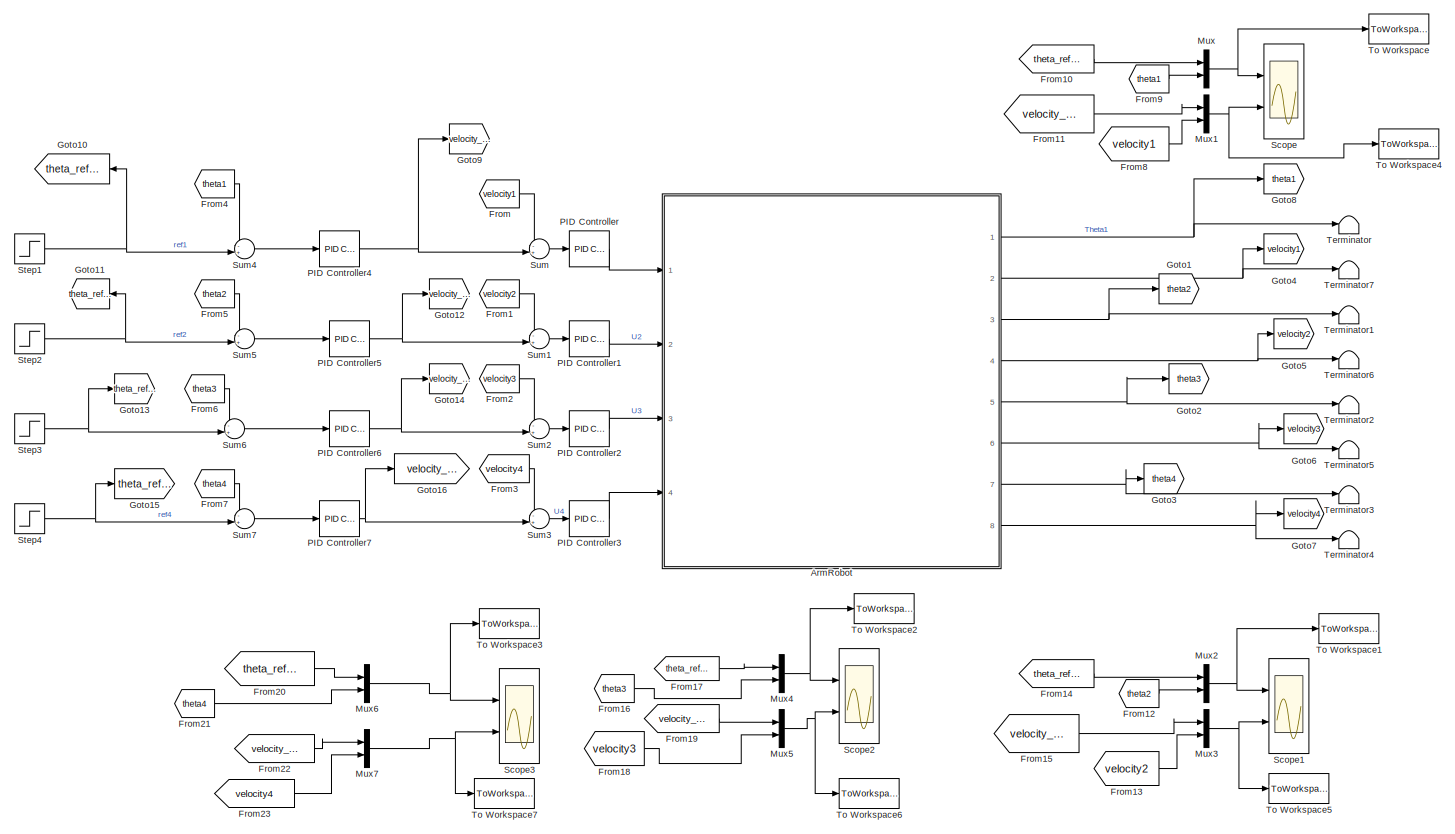
[diagram: root canvas - part 1/1, most of the canvas]
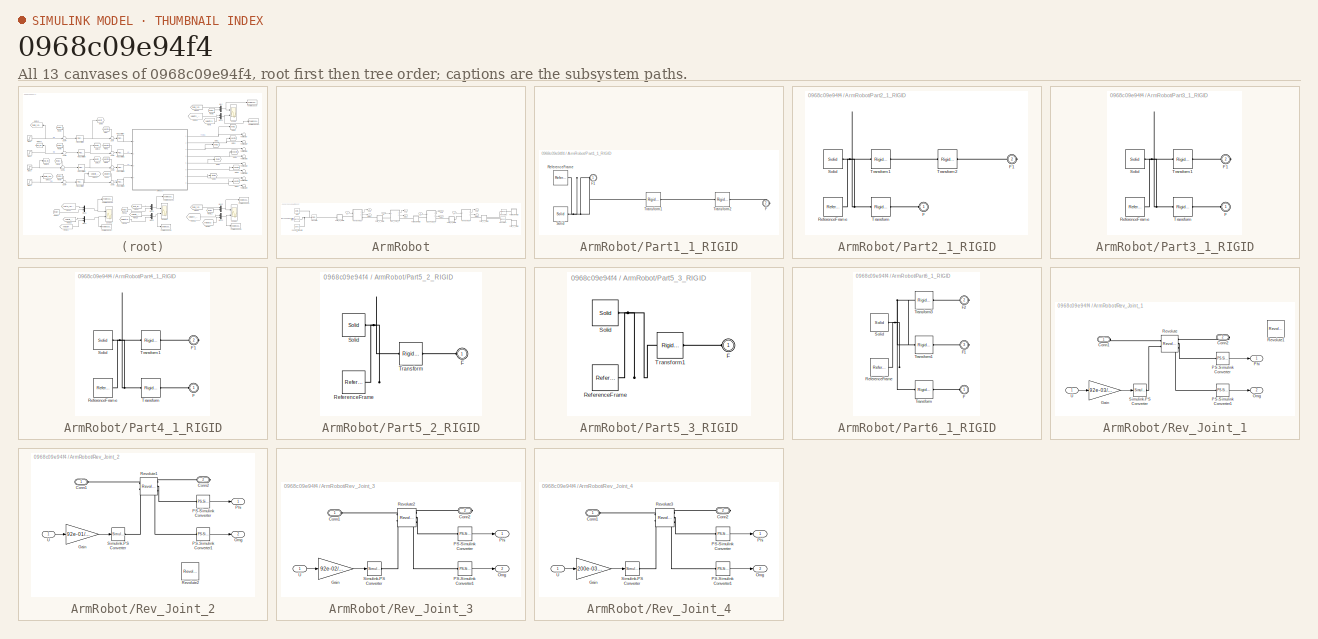
[diagram: thumbnail index - all 13 canvases of the model, root first then tree order]
MODEL slx_0968c09e94f4
KIND model
CONFIG AbsTol = auto
CONFIG FixedStep = 0.001
CONFIG MaxStep = auto
CONFIG MinStep = auto
CONFIG RelTol = 1e-3
CONFIG SampleTimeConstraint = Unconstrained
CONFIG Solver = ode5
CONFIG SolverMode = Auto
CONFIG SolverName = ode5
CONFIG StartTime = 0.0
CONFIG StopTime = 15
WORKSPACE source: external: MATLAB File  (data not in archive)
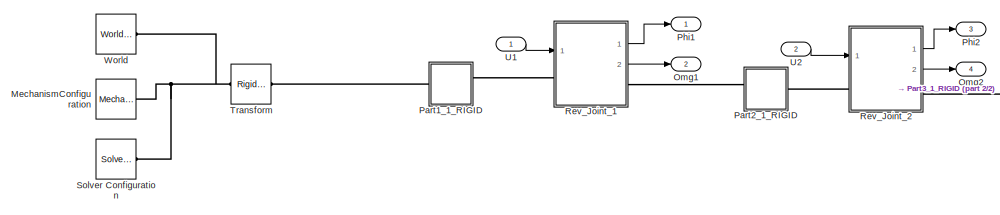
[diagram: ArmRobot - part 1/2, left side, full height]
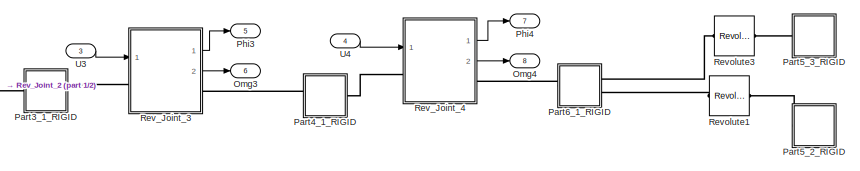
[diagram: ArmRobot - part 2/2, middle right region]
BLOCK [SubSystem] ArmRobot
  Ports = [4, 8]
  RequestExecContextInheritance = off
  Variant = off
BLOCK [Reference] ArmRobot/MechanismConfiguration  REF=sm_lib/Utilities/Mechanism
Configuration
  Ports = [0, 0, 0, 0, 0, 0, 1]
  SourceBlock = sm_lib/Utilities/Mechanism\nConfiguration
  SourceType = Mechanism\nConfiguration
BLOCK [Outport] ArmRobot/Omg1
  IconDisplay = Port number
  Port = 2
BLOCK [Outport] ArmRobot/Omg2
  IconDisplay = Port number
  Port = 4
BLOCK [Outport] ArmRobot/Omg3
  IconDisplay = Port number
  Port = 6
BLOCK [Outport] ArmRobot/Omg4
  IconDisplay = Port number
  Port = 8
BLOCK [SubSystem] ArmRobot/Part1_1_RIGID
  Ports = [0, 0, 0, 0, 0, 1, 1]
  RequestExecContextInheritance = off
  Variant = off
BLOCK [PMIOPort] ArmRobot/Part1_1_RIGID/F
  Port = 2
  Side = Right
BLOCK [PMIOPort] ArmRobot/Part1_1_RIGID/F1
  Port = 1
  Side = Left
BLOCK [Reference] ArmRobot/Part1_1_RIGID/ReferenceFrame  REF=sm_lib/Frames and
Transforms/Reference
Frame
  Ports = [0, 0, 0, 0, 0, 0, 1]
  SourceBlock = sm_lib/Frames and\nTransforms/Reference\nFrame
  SourceType = Reference\nFrame
BLOCK [Reference] ArmRobot/Part1_1_RIGID/Solid  REF=sm_lib/Body Elements/Solid
  Ports = [0, 0, 0, 0, 0, 0, 1]
  SourceBlock = sm_lib/Body Elements/Solid
  SourceType = Solid
BLOCK [Reference] ArmRobot/Part1_1_RIGID/Transform1  REF=sm_lib/Frames and
Transforms/Rigid
Transform
  Ports = [0, 0, 0, 0, 0, 1, 1]
  SourceBlock = sm_lib/Frames and\nTransforms/Rigid\nTransform
  SourceType = Rigid\nTransform
BLOCK [Reference] ArmRobot/Part1_1_RIGID/Transform2  REF=sm_lib/Frames and
Transforms/Rigid
Transform
  Ports = [0, 0, 0, 0, 0, 1, 1]
  SourceBlock = sm_lib/Frames and\nTransforms/Rigid\nTransform
  SourceType = Rigid\nTransform
BLOCK [SubSystem] ArmRobot/Part2_1_RIGID
  Ports = [0, 0, 0, 0, 0, 1, 1]
  RequestExecContextInheritance = off
  Variant = off
BLOCK [PMIOPort] ArmRobot/Part2_1_RIGID/F
  Port = 1
  Side = Left
BLOCK [PMIOPort] ArmRobot/Part2_1_RIGID/F1
  Port = 2
  Side = Right
BLOCK [Reference] ArmRobot/Part2_1_RIGID/ReferenceFrame  REF=sm_lib/Frames and
Transforms/Reference
Frame
  Ports = [0, 0, 0, 0, 0, 0, 1]
  SourceBlock = sm_lib/Frames and\nTransforms/Reference\nFrame
  SourceType = Reference\nFrame
BLOCK [Reference] ArmRobot/Part2_1_RIGID/Solid  REF=sm_lib/Body Elements/Solid
  Ports = [0, 0, 0, 0, 0, 0, 1]
  SourceBlock = sm_lib/Body Elements/Solid
  SourceType = Solid
BLOCK [Reference] ArmRobot/Part2_1_RIGID/Transform  REF=sm_lib/Frames and
Transforms/Rigid
Transform
  Ports = [0, 0, 0, 0, 0, 1, 1]
  SourceBlock = sm_lib/Frames and\nTransforms/Rigid\nTransform
  SourceType = Rigid\nTransform
BLOCK [Reference] ArmRobot/Part2_1_RIGID/Transform1  REF=sm_lib/Frames and
Transforms/Rigid
Transform
  Ports = [0, 0, 0, 0, 0, 1, 1]
  SourceBlock = sm_lib/Frames and\nTransforms/Rigid\nTransform
  SourceType = Rigid\nTransform
BLOCK [Reference] ArmRobot/Part2_1_RIGID/Transform2  REF=sm_lib/Frames and
Transforms/Rigid
Transform
  Ports = [0, 0, 0, 0, 0, 1, 1]
  SourceBlock = sm_lib/Frames and\nTransforms/Rigid\nTransform
  SourceType = Rigid\nTransform
BLOCK [SubSystem] ArmRobot/Part3_1_RIGID
  Ports = [0, 0, 0, 0, 0, 1, 1]
  RequestExecContextInheritance = off
  Variant = off
BLOCK [PMIOPort] ArmRobot/Part3_1_RIGID/F
  Port = 1
  Side = Left
BLOCK [PMIOPort] ArmRobot/Part3_1_RIGID/F1
  Port = 2
  Side = Right
BLOCK [Reference] ArmRobot/Part3_1_RIGID/ReferenceFrame  REF=sm_lib/Frames and
Transforms/Reference
Frame
  Ports = [0, 0, 0, 0, 0, 0, 1]
  SourceBlock = sm_lib/Frames and\nTransforms/Reference\nFrame
  SourceType = Reference\nFrame
BLOCK [Reference] ArmRobot/Part3_1_RIGID/Solid  REF=sm_lib/Body Elements/Solid
  Ports = [0, 0, 0, 0, 0, 0, 1]
  SourceBlock = sm_lib/Body Elements/Solid
  SourceType = Solid
BLOCK [Reference] ArmRobot/Part3_1_RIGID/Transform  REF=sm_lib/Frames and
Transforms/Rigid
Transform
  Ports = [0, 0, 0, 0, 0, 1, 1]
  SourceBlock = sm_lib/Frames and\nTransforms/Rigid\nTransform
  SourceType = Rigid\nTransform
BLOCK [Reference] ArmRobot/Part3_1_RIGID/Transform1  REF=sm_lib/Frames and
Transforms/Rigid
Transform
  Ports = [0, 0, 0, 0, 0, 1, 1]
  SourceBlock = sm_lib/Frames and\nTransforms/Rigid\nTransform
  SourceType = Rigid\nTransform
BLOCK [SubSystem] ArmRobot/Part4_1_RIGID
  Ports = [0, 0, 0, 0, 0, 1, 1]
  RequestExecContextInheritance = off
  Variant = off
BLOCK [PMIOPort] ArmRobot/Part4_1_RIGID/F
  Port = 1
  Side = Left
BLOCK [PMIOPort] ArmRobot/Part4_1_RIGID/F1
  Port = 2
  Side = Right
BLOCK [Reference] ArmRobot/Part4_1_RIGID/ReferenceFrame  REF=sm_lib/Frames and
Transforms/Reference
Frame
  Ports = [0, 0, 0, 0, 0, 0, 1]
  SourceBlock = sm_lib/Frames and\nTransforms/Reference\nFrame
  SourceType = Reference\nFrame
BLOCK [Reference] ArmRobot/Part4_1_RIGID/Solid  REF=sm_lib/Body Elements/Solid
  Ports = [0, 0, 0, 0, 0, 0, 1]
  SourceBlock = sm_lib/Body Elements/Solid
  SourceType = Solid
BLOCK [Reference] ArmRobot/Part4_1_RIGID/Transform  REF=sm_lib/Frames and
Transforms/Rigid
Transform
  Ports = [0, 0, 0, 0, 0, 1, 1]
  SourceBlock = sm_lib/Frames and\nTransforms/Rigid\nTransform
  SourceType = Rigid\nTransform
BLOCK [Reference] ArmRobot/Part4_1_RIGID/Transform1  REF=sm_lib/Frames and
Transforms/Rigid
Transform
  Ports = [0, 0, 0, 0, 0, 1, 1]
  SourceBlock = sm_lib/Frames and\nTransforms/Rigid\nTransform
  SourceType = Rigid\nTransform
BLOCK [SubSystem] ArmRobot/Part5_2_RIGID
  Ports = [0, 0, 0, 0, 0, 1]
  RequestExecContextInheritance = off
  Variant = off
BLOCK [PMIOPort] ArmRobot/Part5_2_RIGID/F
  Port = 1
  Side = Left
BLOCK [Reference] ArmRobot/Part5_2_RIGID/ReferenceFrame  REF=sm_lib/Frames and
Transforms/Reference
Frame
  Ports = [0, 0, 0, 0, 0, 0, 1]
  SourceBlock = sm_lib/Frames and\nTransforms/Reference\nFrame
  SourceType = Reference\nFrame
BLOCK [Reference] ArmRobot/Part5_2_RIGID/Solid  REF=sm_lib/Body Elements/Solid
  Ports = [0, 0, 0, 0, 0, 0, 1]
  SourceBlock = sm_lib/Body Elements/Solid
  SourceType = Solid
BLOCK [Reference] ArmRobot/Part5_2_RIGID/Transform  REF=sm_lib/Frames and
Transforms/Rigid
Transform
  Ports = [0, 0, 0, 0, 0, 1, 1]
  SourceBlock = sm_lib/Frames and\nTransforms/Rigid\nTransform
  SourceType = Rigid\nTransform
BLOCK [SubSystem] ArmRobot/Part5_3_RIGID
  Ports = [0, 0, 0, 0, 0, 1]
  RequestExecContextInheritance = off
  Variant = off
BLOCK [PMIOPort] ArmRobot/Part5_3_RIGID/F
  Port = 1
  Side = Left
BLOCK [Reference] ArmRobot/Part5_3_RIGID/ReferenceFrame  REF=sm_lib/Frames and
Transforms/Reference
Frame
  Ports = [0, 0, 0, 0, 0, 0, 1]
  SourceBlock = sm_lib/Frames and\nTransforms/Reference\nFrame
  SourceType = Reference\nFrame
BLOCK [Reference] ArmRobot/Part5_3_RIGID/Solid  REF=sm_lib/Body Elements/Solid
  Ports = [0, 0, 0, 0, 0, 0, 1]
  SourceBlock = sm_lib/Body Elements/Solid
  SourceType = Solid
BLOCK [Reference] ArmRobot/Part5_3_RIGID/Transform1  REF=sm_lib/Frames and
Transforms/Rigid
Transform
  Ports = [0, 0, 0, 0, 0, 1, 1]
  SourceBlock = sm_lib/Frames and\nTransforms/Rigid\nTransform
  SourceType = Rigid\nTransform
BLOCK [SubSystem] ArmRobot/Part6_1_RIGID
  Ports = [0, 0, 0, 0, 0, 1, 2]
  RequestExecContextInheritance = off
  Variant = off
BLOCK [PMIOPort] ArmRobot/Part6_1_RIGID/F
  Port = 1
  Side = Left
BLOCK [PMIOPort] ArmRobot/Part6_1_RIGID/F1
  Port = 3
  Side = Right
BLOCK [PMIOPort] ArmRobot/Part6_1_RIGID/F2
  Port = 2
  Side = Right
BLOCK [Reference] ArmRobot/Part6_1_RIGID/ReferenceFrame  REF=sm_lib/Frames and
Transforms/Reference
Frame
  Ports = [0, 0, 0, 0, 0, 0, 1]
  SourceBlock = sm_lib/Frames and\nTransforms/Reference\nFrame
  SourceType = Reference\nFrame
BLOCK [Reference] ArmRobot/Part6_1_RIGID/Solid  REF=sm_lib/Body Elements/Solid
  Ports = [0, 0, 0, 0, 0, 0, 1]
  SourceBlock = sm_lib/Body Elements/Solid
  SourceType = Solid
BLOCK [Reference] ArmRobot/Part6_1_RIGID/Transform  REF=sm_lib/Frames and
Transforms/Rigid
Transform
  Ports = [0, 0, 0, 0, 0, 1, 1]
  SourceBlock = sm_lib/Frames and\nTransforms/Rigid\nTransform
  SourceType = Rigid\nTransform
BLOCK [Reference] ArmRobot/Part6_1_RIGID/Transform1  REF=sm_lib/Frames and
Transforms/Rigid
Transform
  Ports = [0, 0, 0, 0, 0, 1, 1]
  SourceBlock = sm_lib/Frames and\nTransforms/Rigid\nTransform
  SourceType = Rigid\nTransform
BLOCK [Reference] ArmRobot/Part6_1_RIGID/Transform3  REF=sm_lib/Frames and
Transforms/Rigid
Transform
  Ports = [0, 0, 0, 0, 0, 1, 1]
  SourceBlock = sm_lib/Frames and\nTransforms/Rigid\nTransform
  SourceType = Rigid\nTransform
BLOCK [Outport] ArmRobot/Phi1
  IconDisplay = Port number
BLOCK [Outport] ArmRobot/Phi2
  IconDisplay = Port number
  Port = 3
BLOCK [Outport] ArmRobot/Phi3
  IconDisplay = Port number
  Port = 5
BLOCK [Outport] ArmRobot/Phi4
  IconDisplay = Port number
  Port = 7
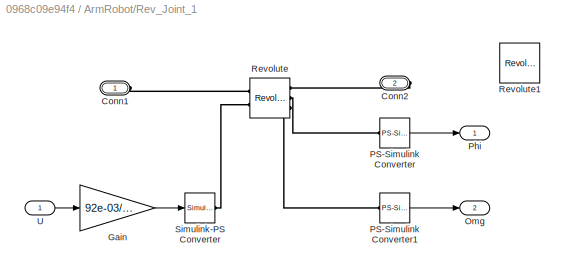
BLOCK [SubSystem] ArmRobot/Rev_Joint_1
  Ports = [1, 2, 0, 0, 0, 1, 1]
  RequestExecContextInheritance = off
  Variant = off
BLOCK [PMIOPort] ArmRobot/Rev_Joint_1/Conn1
  Port = 1
  Side = Left
BLOCK [PMIOPort] ArmRobot/Rev_Joint_1/Conn2
  Port = 2
  Side = Right
BLOCK [Gain] ArmRobot/Rev_Joint_1/Gain
  Gain = 92e-03/12
  OutDataTypeStr = Inherit: Inherit via internal rule
  ParamDataTypeStr = Inherit: Inherit via internal rule
  SaturateOnIntegerOverflow = off
BLOCK [Outport] ArmRobot/Rev_Joint_1/Omg
  IconDisplay = Port number
  Port = 2
BLOCK [Reference] ArmRobot/Rev_Joint_1/PS-Simulink Converter  REF=nesl_utility/PS-Simulink
Converter
  Ports = [0, 1, 0, 0, 0, 1]
  SourceBlock = nesl_utility/PS-Simulink\nConverter
  SourceType = PS-Simulink\nConverter
BLOCK [Reference] ArmRobot/Rev_Joint_1/PS-Simulink Converter1  REF=nesl_utility/PS-Simulink
Converter
  Ports = [0, 1, 0, 0, 0, 1]
  SourceBlock = nesl_utility/PS-Simulink\nConverter
  SourceType = PS-Simulink\nConverter
BLOCK [Outport] ArmRobot/Rev_Joint_1/Phi
  IconDisplay = Port number
BLOCK [Reference] ArmRobot/Rev_Joint_1/Revolute  REF=sm_lib/Joints/Revolute Joint
  Ports = [0, 0, 0, 0, 0, 2, 3]
  SourceBlock = sm_lib/Joints/Revolute Joint
  SourceType = Revolute Joint
BLOCK [Reference] ArmRobot/Rev_Joint_1/Revolute1  REF=sm_lib/Joints/Revolute Joint
  Commented = on
  Ports = [0, 0, 0, 0, 0, 2, 3]
  SourceBlock = sm_lib/Joints/Revolute Joint
  SourceType = Revolute Joint
BLOCK [Reference] ArmRobot/Rev_Joint_1/Simulink-PS Converter  REF=nesl_utility/Simulink-PS
Converter
  Ports = [1, 0, 0, 0, 0, 0, 1]
  SourceBlock = nesl_utility/Simulink-PS\nConverter
  SourceType = Simulink-PS\nConverter
BLOCK [Inport] ArmRobot/Rev_Joint_1/U
  IconDisplay = Port number
BLOCK [SubSystem] ArmRobot/Rev_Joint_2
  Ports = [1, 2, 0, 0, 0, 1, 1]
  RequestExecContextInheritance = off
  Variant = off
BLOCK [PMIOPort] ArmRobot/Rev_Joint_2/Conn1
  Port = 1
  Side = Left
BLOCK [PMIOPort] ArmRobot/Rev_Joint_2/Conn2
  Port = 2
  Side = Right
BLOCK [Gain] ArmRobot/Rev_Joint_2/Gain
  Gain = 92e-01/12
  OutDataTypeStr = Inherit: Inherit via internal rule
  ParamDataTypeStr = Inherit: Inherit via internal rule
  SaturateOnIntegerOverflow = off
BLOCK [Outport] ArmRobot/Rev_Joint_2/Omg
  IconDisplay = Port number
  Port = 2
BLOCK [Reference] ArmRobot/Rev_Joint_2/PS-Simulink Converter  REF=nesl_utility/PS-Simulink
Converter
  Ports = [0, 1, 0, 0, 0, 1]
  SourceBlock = nesl_utility/PS-Simulink\nConverter
  SourceType = PS-Simulink\nConverter
BLOCK [Reference] ArmRobot/Rev_Joint_2/PS-Simulink Converter1  REF=nesl_utility/PS-Simulink
Converter
  Ports = [0, 1, 0, 0, 0, 1]
  SourceBlock = nesl_utility/PS-Simulink\nConverter
  SourceType = PS-Simulink\nConverter
BLOCK [Outport] ArmRobot/Rev_Joint_2/Phi
  IconDisplay = Port number
BLOCK [Reference] ArmRobot/Rev_Joint_2/Revolute1  REF=sm_lib/Joints/Revolute Joint
  Ports = [0, 0, 0, 0, 0, 2, 3]
  SourceBlock = sm_lib/Joints/Revolute Joint
  SourceType = Revolute Joint
BLOCK [Reference] ArmRobot/Rev_Joint_2/Revolute2  REF=sm_lib/Joints/Revolute Joint
  Commented = on
  Ports = [0, 0, 0, 0, 0, 2, 3]
  SourceBlock = sm_lib/Joints/Revolute Joint
  SourceType = Revolute Joint
BLOCK [Reference] ArmRobot/Rev_Joint_2/Simulink-PS Converter  REF=nesl_utility/Simulink-PS
Converter
  Ports = [1, 0, 0, 0, 0, 0, 1]
  SourceBlock = nesl_utility/Simulink-PS\nConverter
  SourceType = Simulink-PS\nConverter
BLOCK [Inport] ArmRobot/Rev_Joint_2/U
  IconDisplay = Port number
BLOCK [SubSystem] ArmRobot/Rev_Joint_3
  Ports = [1, 2, 0, 0, 0, 1, 1]
  RequestExecContextInheritance = off
  Variant = off
BLOCK [PMIOPort] ArmRobot/Rev_Joint_3/Conn1
  Port = 1
  Side = Left
BLOCK [PMIOPort] ArmRobot/Rev_Joint_3/Conn2
  Port = 2
  Side = Right
BLOCK [Gain] ArmRobot/Rev_Joint_3/Gain
  Gain = 92e-02/12
  OutDataTypeStr = Inherit: Inherit via internal rule
  ParamDataTypeStr = Inherit: Inherit via internal rule
  SaturateOnIntegerOverflow = off
BLOCK [Outport] ArmRobot/Rev_Joint_3/Omg
  IconDisplay = Port number
  Port = 2
BLOCK [Reference] ArmRobot/Rev_Joint_3/PS-Simulink Converter  REF=nesl_utility/PS-Simulink
Converter
  Ports = [0, 1, 0, 0, 0, 1]
  SourceBlock = nesl_utility/PS-Simulink\nConverter
  SourceType = PS-Simulink\nConverter
BLOCK [Reference] ArmRobot/Rev_Joint_3/PS-Simulink Converter1  REF=nesl_utility/PS-Simulink
Converter
  Ports = [0, 1, 0, 0, 0, 1]
  SourceBlock = nesl_utility/PS-Simulink\nConverter
  SourceType = PS-Simulink\nConverter
BLOCK [Outport] ArmRobot/Rev_Joint_3/Phi
  IconDisplay = Port number
BLOCK [Reference] ArmRobot/Rev_Joint_3/Revolute2  REF=sm_lib/Joints/Revolute Joint
  Ports = [0, 0, 0, 0, 0, 2, 3]
  SourceBlock = sm_lib/Joints/Revolute Joint
  SourceType = Revolute Joint
BLOCK [Reference] ArmRobot/Rev_Joint_3/Simulink-PS Converter  REF=nesl_utility/Simulink-PS
Converter
  Ports = [1, 0, 0, 0, 0, 0, 1]
  SourceBlock = nesl_utility/Simulink-PS\nConverter
  SourceType = Simulink-PS\nConverter
BLOCK [Inport] ArmRobot/Rev_Joint_3/U
  IconDisplay = Port number
BLOCK [SubSystem] ArmRobot/Rev_Joint_4
  Ports = [1, 2, 0, 0, 0, 1, 1]
  RequestExecContextInheritance = off
  Variant = off
BLOCK [PMIOPort] ArmRobot/Rev_Joint_4/Conn1
  Port = 1
  Side = Left
BLOCK [PMIOPort] ArmRobot/Rev_Joint_4/Conn2
  Port = 2
  Side = Right
BLOCK [Gain] ArmRobot/Rev_Joint_4/Gain
  Gain = 200e-03/12
  OutDataTypeStr = Inherit: Inherit via internal rule
  ParamDataTypeStr = Inherit: Inherit via internal rule
  SaturateOnIntegerOverflow = off
BLOCK [Outport] ArmRobot/Rev_Joint_4/Omg
  IconDisplay = Port number
  Port = 2
BLOCK [Reference] ArmRobot/Rev_Joint_4/PS-Simulink Converter  REF=nesl_utility/PS-Simulink
Converter
  Ports = [0, 1, 0, 0, 0, 1]
  SourceBlock = nesl_utility/PS-Simulink\nConverter
  SourceType = PS-Simulink\nConverter
BLOCK [Reference] ArmRobot/Rev_Joint_4/PS-Simulink Converter1  REF=nesl_utility/PS-Simulink
Converter
  Ports = [0, 1, 0, 0, 0, 1]
  SourceBlock = nesl_utility/PS-Simulink\nConverter
  SourceType = PS-Simulink\nConverter
BLOCK [Outport] ArmRobot/Rev_Joint_4/Phi
  IconDisplay = Port number
BLOCK [Reference] ArmRobot/Rev_Joint_4/Revolute3  REF=sm_lib/Joints/Revolute Joint
  Ports = [0, 0, 0, 0, 0, 2, 3]
  SourceBlock = sm_lib/Joints/Revolute Joint
  SourceType = Revolute Joint
BLOCK [Reference] ArmRobot/Rev_Joint_4/Simulink-PS Converter  REF=nesl_utility/Simulink-PS
Converter
  Ports = [1, 0, 0, 0, 0, 0, 1]
  SourceBlock = nesl_utility/Simulink-PS\nConverter
  SourceType = Simulink-PS\nConverter
BLOCK [Inport] ArmRobot/Rev_Joint_4/U
  IconDisplay = Port number
BLOCK [Reference] ArmRobot/Revolute1  REF=sm_lib/Joints/Revolute Joint
  Ports = [0, 0, 0, 0, 0, 1, 1]
  SourceBlock = sm_lib/Joints/Revolute Joint
  SourceType = Revolute Joint
BLOCK [Reference] ArmRobot/Revolute3  REF=sm_lib/Joints/Revolute Joint
  Ports = [0, 0, 0, 0, 0, 1, 1]
  SourceBlock = sm_lib/Joints/Revolute Joint
  SourceType = Revolute Joint
BLOCK [Reference] ArmRobot/Solver Configuration  REF=nesl_utility/Solver
Configuration
  Ports = [0, 0, 0, 0, 0, 0, 1]
  SourceBlock = nesl_utility/Solver\nConfiguration
  SourceType = Solver\nConfiguration
BLOCK [Reference] ArmRobot/Transform  REF=sm_lib/Frames and
Transforms/Rigid
Transform
  Ports = [0, 0, 0, 0, 0, 1, 1]
  SourceBlock = sm_lib/Frames and\nTransforms/Rigid\nTransform
  SourceType = Rigid\nTransform
BLOCK [Inport] ArmRobot/U1
  IconDisplay = Port number
BLOCK [Inport] ArmRobot/U2
  IconDisplay = Port number
  Port = 2
BLOCK [Inport] ArmRobot/U3
  IconDisplay = Port number
  Port = 3
BLOCK [Inport] ArmRobot/U4
  IconDisplay = Port number
  Port = 4
BLOCK [Reference] ArmRobot/World  REF=sm_lib/Frames and
Transforms/World Frame
  Ports = [0, 0, 0, 0, 0, 0, 1]
  SourceBlock = sm_lib/Frames and\nTransforms/World Frame
  SourceType = World Frame
BLOCK [From] From
  GotoTag = velocity1
BLOCK [From] From1
  GotoTag = velocity2
BLOCK [From] From10
  GotoTag = theta_ref_1
BLOCK [From] From11
  GotoTag = velocity_ref_1
BLOCK [From] From12
  GotoTag = theta2
BLOCK [From] From13
  GotoTag = velocity2
BLOCK [From] From14
  GotoTag = theta_ref_2
BLOCK [From] From15
  GotoTag = velocity_ref_2
BLOCK [From] From16
  GotoTag = theta3
BLOCK [From] From17
  GotoTag = theta_ref_3
BLOCK [From] From18
  GotoTag = velocity3
BLOCK [From] From19
  GotoTag = velocity_ref_3
BLOCK [From] From2
  GotoTag = velocity3
BLOCK [From] From20
  GotoTag = theta_ref_4
BLOCK [From] From21
  GotoTag = theta4
BLOCK [From] From22
  GotoTag = velocity_ref_4
BLOCK [From] From23
  GotoTag = velocity4
BLOCK [From] From3
  GotoTag = velocity4
BLOCK [From] From4
  GotoTag = theta1
BLOCK [From] From5
  GotoTag = theta2
BLOCK [From] From6
  GotoTag = theta3
BLOCK [From] From7
  GotoTag = theta4
BLOCK [From] From8
  GotoTag = velocity1
BLOCK [From] From9
  GotoTag = theta1
BLOCK [Goto] Goto1
  GotoTag = theta2
BLOCK [Goto] Goto10
  GotoTag = theta_ref_1
BLOCK [Goto] Goto11
  GotoTag = theta_ref_2
BLOCK [Goto] Goto12
  GotoTag = velocity_ref_2
BLOCK [Goto] Goto13
  GotoTag = theta_ref_3
BLOCK [Goto] Goto14
  GotoTag = velocity_ref_3
BLOCK [Goto] Goto15
  GotoTag = theta_ref_4
BLOCK [Goto] Goto16
  GotoTag = velocity_ref_4
BLOCK [Goto] Goto2
  GotoTag = theta3
BLOCK [Goto] Goto3
  GotoTag = theta4
BLOCK [Goto] Goto4
  GotoTag = velocity1
BLOCK [Goto] Goto5
  GotoTag = velocity2
BLOCK [Goto] Goto6
  GotoTag = velocity3
BLOCK [Goto] Goto7
  GotoTag = velocity4
BLOCK [Goto] Goto8
  GotoTag = theta1
BLOCK [Goto] Goto9
  GotoTag = velocity_ref_1
BLOCK [Mux] Mux
  DisplayOption = bar
  Inputs = 2
  Ports = [2, 1]
BLOCK [Mux] Mux1
  DisplayOption = bar
  Inputs = 2
  Ports = [2, 1]
BLOCK [Mux] Mux2
  DisplayOption = bar
  Inputs = 2
  Ports = [2, 1]
BLOCK [Mux] Mux3
  DisplayOption = bar
  Inputs = 2
  Ports = [2, 1]
BLOCK [Mux] Mux4
  DisplayOption = bar
  Inputs = 2
  Ports = [2, 1]
BLOCK [Mux] Mux5
  DisplayOption = bar
  Inputs = 2
  Ports = [2, 1]
BLOCK [Mux] Mux6
  DisplayOption = bar
  Inputs = 2
  Ports = [2, 1]
BLOCK [Mux] Mux7
  DisplayOption = bar
  Inputs = 2
  Ports = [2, 1]
BLOCK [Reference] PID Controller  REF=simulink/Continuous/PID Controller
  Ports = [1, 1]
  SourceBlock = simulink/Continuous/PID Controller
  SourceType = PID 1dof
BLOCK [Reference] PID Controller1  REF=simulink/Continuous/PID Controller
  Ports = [1, 1]
  SourceBlock = simulink/Continuous/PID Controller
  SourceType = PID 1dof
BLOCK [Reference] PID Controller2  REF=simulink/Continuous/PID Controller
  Ports = [1, 1]
  SourceBlock = simulink/Continuous/PID Controller
  SourceType = PID 1dof
BLOCK [Reference] PID Controller3  REF=simulink/Continuous/PID Controller
  Ports = [1, 1]
  SourceBlock = simulink/Continuous/PID Controller
  SourceType = PID 1dof
BLOCK [Reference] PID Controller4  REF=simulink/Continuous/PID Controller
  Ports = [1, 1]
  SourceBlock = simulink/Continuous/PID Controller
  SourceType = PID 1dof
BLOCK [Reference] PID Controller5  REF=simulink/Continuous/PID Controller
  Ports = [1, 1]
  SourceBlock = simulink/Continuous/PID Controller
  SourceType = PID 1dof
BLOCK [Reference] PID Controller6  REF=simulink/Continuous/PID Controller
  Ports = [1, 1]
  SourceBlock = simulink/Continuous/PID Controller
  SourceType = PID 1dof
BLOCK [Reference] PID Controller7  REF=simulink/Continuous/PID Controller
  Ports = [1, 1]
  SourceBlock = simulink/Continuous/PID Controller
  SourceType = PID 1dof
BLOCK [Scope] Scope
  NumInputPorts = 2
  Ports = [2]
  ScopeSpecificationString = Simulink.scopes.TimeScopeBlockCfg('CurrentConfiguration', extmgr.ConfigurationSet(extmgr.Configuration('Core','General UI',true),extmgr.Configuration('Core','Source UI',true),extmgr.Configuration('Sources','WiredSimulink',true),extmgr.Configuration('Visuals','Time Domain',true,'SerializedDisplays',{struct('MinYLimReal','-0.3927','MaxYLimReal','3.53429','YLabelReal','','MinYLimMag','0.00000','MaxYL...<+2430ch>
BLOCK [Scope] Scope1
  NumInputPorts = 2
  Ports = [2]
  ScopeSpecificationString = Simulink.scopes.TimeScopeBlockCfg('CurrentConfiguration', extmgr.ConfigurationSet(extmgr.Configuration('Core','General UI',true),extmgr.Configuration('Core','Source UI',true),extmgr.Configuration('Sources','WiredSimulink',true,'DataLoggingVariableName','ScopeData1'),extmgr.Configuration('Visuals','Time Domain',true,'SerializedDisplays',{struct('MinYLimReal','-0.19784','MaxYLimReal','1.78058','YLab...<+2108ch>
BLOCK [Scope] Scope2
  NumInputPorts = 2
  Ports = [2]
  ScopeSpecificationString = Simulink.scopes.TimeScopeBlockCfg('CurrentConfiguration', extmgr.ConfigurationSet(extmgr.Configuration('Core','General UI',true),extmgr.Configuration('Core','Source UI',true),extmgr.Configuration('Sources','WiredSimulink',true,'DataLoggingVariableName','ScopeData2'),extmgr.Configuration('Visuals','Time Domain',true,'SerializedDisplays',{struct('MinYLimReal','-0.19701','MaxYLimReal','1.76722','YLab...<+2111ch>
BLOCK [Scope] Scope3
  NumInputPorts = 2
  Ports = [2]
  ScopeSpecificationString = Simulink.scopes.TimeScopeBlockCfg('CurrentConfiguration', extmgr.ConfigurationSet(extmgr.Configuration('Core','General UI',true),extmgr.Configuration('Core','Source UI',true),extmgr.Configuration('Sources','WiredSimulink',true,'DataLoggingVariableName','ScopeData3'),extmgr.Configuration('Visuals','Time Domain',true,'SerializedDisplays',{struct('MinYLimReal','-0.19756','MaxYLimReal','1.77695','YLab...<+2112ch>
BLOCK [Step] Step1
  After = pi
  SampleTime = 0
  Time = 8
BLOCK [Step] Step2
  After = 0
  Before = pi/4
  SampleTime = 0
  Time = 4
BLOCK [Step] Step3
  After = pi/2
  Before = pi/6
  SampleTime = 0
  Time = 5
BLOCK [Step] Step4
  After = pi
  Before = pi/2
  SampleTime = 0
  Time = 6
BLOCK [Sum] Sum
  IconShape = round
  InputSameDT = off
  Inputs = -+|
  OutDataTypeStr = Inherit: Inherit via internal rule
  Ports = [2, 1]
  SaturateOnIntegerOverflow = off
BLOCK [Sum] Sum1
  IconShape = round
  InputSameDT = off
  Inputs = -+|
  OutDataTypeStr = Inherit: Inherit via internal rule
  Ports = [2, 1]
  SaturateOnIntegerOverflow = off
BLOCK [Sum] Sum2
  IconShape = round
  InputSameDT = off
  Inputs = -+|
  OutDataTypeStr = Inherit: Inherit via internal rule
  Ports = [2, 1]
  SaturateOnIntegerOverflow = off
BLOCK [Sum] Sum3
  IconShape = round
  InputSameDT = off
  Inputs = -+|
  OutDataTypeStr = Inherit: Inherit via internal rule
  Ports = [2, 1]
  SaturateOnIntegerOverflow = off
BLOCK [Sum] Sum4
  IconShape = round
  InputSameDT = off
  Inputs = -+|
  OutDataTypeStr = Inherit: Inherit via internal rule
  Ports = [2, 1]
  SaturateOnIntegerOverflow = off
BLOCK [Sum] Sum5
  IconShape = round
  InputSameDT = off
  Inputs = -+|
  OutDataTypeStr = Inherit: Inherit via internal rule
  Ports = [2, 1]
  SaturateOnIntegerOverflow = off
BLOCK [Sum] Sum6
  IconShape = round
  InputSameDT = off
  Inputs = -+|
  OutDataTypeStr = Inherit: Inherit via internal rule
  Ports = [2, 1]
  SaturateOnIntegerOverflow = off
BLOCK [Sum] Sum7
  IconShape = round
  InputSameDT = off
  Inputs = -+|
  OutDataTypeStr = Inherit: Inherit via internal rule
  Ports = [2, 1]
  SaturateOnIntegerOverflow = off
BLOCK [Terminator] Terminator
BLOCK [Terminator] Terminator1
BLOCK [Terminator] Terminator2
BLOCK [Terminator] Terminator3
BLOCK [Terminator] Terminator4
BLOCK [Terminator] Terminator5
BLOCK [Terminator] Terminator6
BLOCK [Terminator] Terminator7
BLOCK [ToWorkspace] To Workspace
  FixptAsFi = on
  MaxDataPoints = inf
  Ports = [1]
  SampleTime = -1
  Save2DSignal = 3-D array (concatenate along third dimension)
  SaveFormat = Timeseries
  VariableName = d
BLOCK [ToWorkspace] To Workspace1
  FixptAsFi = on
  MaxDataPoints = inf
  Ports = [1]
  SampleTime = -1
  Save2DSignal = 3-D array (concatenate along third dimension)
  SaveFormat = Timeseries
  VariableName = d1
BLOCK [ToWorkspace] To Workspace2
  FixptAsFi = on
  MaxDataPoints = inf
  Ports = [1]
  SampleTime = -1
  Save2DSignal = 3-D array (concatenate along third dimension)
  SaveFormat = Timeseries
  VariableName = d2
BLOCK [ToWorkspace] To Workspace3
  FixptAsFi = on
  MaxDataPoints = inf
  Ports = [1]
  SampleTime = -1
  Save2DSignal = 3-D array (concatenate along third dimension)
  VariableName = d3
BLOCK [ToWorkspace] To Workspace4
  FixptAsFi = on
  MaxDataPoints = inf
  Ports = [1]
  SampleTime = -1
  Save2DSignal = 3-D array (concatenate along third dimension)
  SaveFormat = Timeseries
  VariableName = d4
BLOCK [ToWorkspace] To Workspace5
  FixptAsFi = on
  MaxDataPoints = inf
  Ports = [1]
  SampleTime = -1
  Save2DSignal = 3-D array (concatenate along third dimension)
  SaveFormat = Timeseries
  VariableName = d5
BLOCK [ToWorkspace] To Workspace6
  FixptAsFi = on
  MaxDataPoints = inf
  Ports = [1]
  SampleTime = -1
  Save2DSignal = 3-D array (concatenate along third dimension)
  SaveFormat = Timeseries
  VariableName = d6
BLOCK [ToWorkspace] To Workspace7
  FixptAsFi = on
  MaxDataPoints = inf
  Ports = [1]
  SampleTime = -1
  Save2DSignal = 3-D array (concatenate along third dimension)
  SaveFormat = Timeseries
  VariableName = d7
LINE ArmRobot/Rev_Joint_1/Gain:1 -> ArmRobot/Rev_Joint_1/Simulink-PS Converter:1
LINE ArmRobot/Rev_Joint_1/PS-Simulink Converter1:1 -> ArmRobot/Rev_Joint_1/Omg:1
LINE ArmRobot/Rev_Joint_1/PS-Simulink Converter:1 -> ArmRobot/Rev_Joint_1/Phi:1
LINE ArmRobot/Rev_Joint_1/U:1 -> ArmRobot/Rev_Joint_1/Gain:1
LINE ArmRobot/Rev_Joint_1:1 -> ArmRobot/Phi1:1
LINE ArmRobot/Rev_Joint_1:2 -> ArmRobot/Omg1:1
LINE ArmRobot/Rev_Joint_2/Gain:1 -> ArmRobot/Rev_Joint_2/Simulink-PS Converter:1
LINE ArmRobot/Rev_Joint_2/PS-Simulink Converter1:1 -> ArmRobot/Rev_Joint_2/Omg:1
LINE ArmRobot/Rev_Joint_2/PS-Simulink Converter:1 -> ArmRobot/Rev_Joint_2/Phi:1
LINE ArmRobot/Rev_Joint_2/U:1 -> ArmRobot/Rev_Joint_2/Gain:1
LINE ArmRobot/Rev_Joint_2:1 -> ArmRobot/Phi2:1
LINE ArmRobot/Rev_Joint_2:2 -> ArmRobot/Omg2:1
LINE ArmRobot/Rev_Joint_3/Gain:1 -> ArmRobot/Rev_Joint_3/Simulink-PS Converter:1
LINE ArmRobot/Rev_Joint_3/PS-Simulink Converter1:1 -> ArmRobot/Rev_Joint_3/Omg:1
LINE ArmRobot/Rev_Joint_3/PS-Simulink Converter:1 -> ArmRobot/Rev_Joint_3/Phi:1
LINE ArmRobot/Rev_Joint_3/U:1 -> ArmRobot/Rev_Joint_3/Gain:1
LINE ArmRobot/Rev_Joint_3:1 -> ArmRobot/Phi3:1
LINE ArmRobot/Rev_Joint_3:2 -> ArmRobot/Omg3:1
LINE ArmRobot/Rev_Joint_4/Gain:1 -> ArmRobot/Rev_Joint_4/Simulink-PS Converter:1
LINE ArmRobot/Rev_Joint_4/PS-Simulink Converter1:1 -> ArmRobot/Rev_Joint_4/Omg:1
LINE ArmRobot/Rev_Joint_4/PS-Simulink Converter:1 -> ArmRobot/Rev_Joint_4/Phi:1
LINE ArmRobot/Rev_Joint_4/U:1 -> ArmRobot/Rev_Joint_4/Gain:1
LINE ArmRobot/Rev_Joint_4:1 -> ArmRobot/Phi4:1
LINE ArmRobot/Rev_Joint_4:2 -> ArmRobot/Omg4:1
LINE ArmRobot/U1:1 -> ArmRobot/Rev_Joint_1:1
LINE ArmRobot/U2:1 -> ArmRobot/Rev_Joint_2:1
LINE ArmRobot/U3:1 -> ArmRobot/Rev_Joint_3:1
LINE ArmRobot/U4:1 -> ArmRobot/Rev_Joint_4:1
NET ArmRobot:1 -> Goto8:1, Terminator:1
NET ArmRobot:2 -> Goto4:1, Terminator7:1
NET ArmRobot:3 -> Goto1:1, Terminator1:1
NET ArmRobot:4 -> Goto5:1, Terminator6:1
NET ArmRobot:5 -> Goto2:1, Terminator2:1
NET ArmRobot:6 -> Goto6:1, Terminator5:1
NET ArmRobot:7 -> Goto3:1, Terminator3:1
NET ArmRobot:8 -> Goto7:1, Terminator4:1
LINE From10:1 -> Mux:1
LINE From11:1 -> Mux1:1
LINE From12:1 -> Mux2:2
LINE From13:1 -> Mux3:2
LINE From14:1 -> Mux2:1
LINE From15:1 -> Mux3:1
LINE From16:1 -> Mux4:2
LINE From17:1 -> Mux4:1
LINE From18:1 -> Mux5:2
LINE From19:1 -> Mux5:1
LINE From1:1 -> Sum1:1
LINE From20:1 -> Mux6:1
LINE From21:1 -> Mux6:2
LINE From22:1 -> Mux7:1
LINE From23:1 -> Mux7:2
LINE From2:1 -> Sum2:1
LINE From3:1 -> Sum3:1
LINE From4:1 -> Sum4:1
LINE From5:1 -> Sum5:1
LINE From6:1 -> Sum6:1
LINE From7:1 -> Sum7:1
LINE From8:1 -> Mux1:2
LINE From9:1 -> Mux:2
LINE From:1 -> Sum:1
NET Mux1:1 -> Scope:2, To Workspace4:1
NET Mux2:1 -> Scope1:1, To Workspace1:1
NET Mux3:1 -> Scope1:2, To Workspace5:1
NET Mux4:1 -> Scope2:1, To Workspace2:1
NET Mux5:1 -> Scope2:2, To Workspace6:1
NET Mux6:1 -> Scope3:1, To Workspace3:1
NET Mux7:1 -> Scope3:2, To Workspace7:1
NET Mux:1 -> Scope:1, To Workspace:1
LINE PID Controller1:1 -> ArmRobot:2
LINE PID Controller2:1 -> ArmRobot:3
LINE PID Controller3:1 -> ArmRobot:4
NET PID Controller4:1 -> Goto9:1, Sum:2
NET PID Controller5:1 -> Goto12:1, Sum1:2
NET PID Controller6:1 -> Goto14:1, Sum2:2
NET PID Controller7:1 -> Goto16:1, Sum3:2
LINE PID Controller:1 -> ArmRobot:1
NET Step1:1 -> Goto10:1, Sum4:2
NET Step2:1 -> Goto11:1, Sum5:2
NET Step3:1 -> Goto13:1, Sum6:2
NET Step4:1 -> Goto15:1, Sum7:2
LINE Sum1:1 -> PID Controller1:1
LINE Sum2:1 -> PID Controller2:1
LINE Sum3:1 -> PID Controller3:1
LINE Sum4:1 -> PID Controller4:1
LINE Sum5:1 -> PID Controller5:1
LINE Sum6:1 -> PID Controller6:1
LINE Sum7:1 -> PID Controller7:1
LINE Sum:1 -> PID Controller:1
PNET net1: ArmRobot/MechanismConfiguration:RConn1 -- ArmRobot/Solver Configuration:RConn1 -- ArmRobot/Transform:LConn1 -- ArmRobot/World:RConn1
PNET net2: ArmRobot/Part1_1_RIGID/F1:RConn1 -- ArmRobot/Part1_1_RIGID/ReferenceFrame:RConn1 -- ArmRobot/Part1_1_RIGID/Solid:RConn1 -- ArmRobot/Part1_1_RIGID/Transform1:LConn1
PLINE ArmRobot/Part1_1_RIGID/F:RConn1 -- ArmRobot/Part1_1_RIGID/Transform2:RConn1
PLINE ArmRobot/Part1_1_RIGID/Transform1:RConn1 -- ArmRobot/Part1_1_RIGID/Transform2:LConn1
PLINE ArmRobot/Part1_1_RIGID:LConn1 -- ArmRobot/Transform:RConn1
PLINE ArmRobot/Part1_1_RIGID:RConn1 -- ArmRobot/Rev_Joint_1:LConn1
PLINE ArmRobot/Part2_1_RIGID/F1:RConn1 -- ArmRobot/Part2_1_RIGID/Transform2:RConn1
PLINE ArmRobot/Part2_1_RIGID/F:RConn1 -- ArmRobot/Part2_1_RIGID/Transform:RConn1
PNET net3: ArmRobot/Part2_1_RIGID/ReferenceFrame:RConn1 -- ArmRobot/Part2_1_RIGID/Solid:RConn1 -- ArmRobot/Part2_1_RIGID/Transform1:LConn1 -- ArmRobot/Part2_1_RIGID/Transform:LConn1
PLINE ArmRobot/Part2_1_RIGID/Transform1:RConn1 -- ArmRobot/Part2_1_RIGID/Transform2:LConn1
PLINE ArmRobot/Part2_1_RIGID:LConn1 -- ArmRobot/Rev_Joint_1:RConn1
PLINE ArmRobot/Part2_1_RIGID:RConn1 -- ArmRobot/Rev_Joint_2:LConn1
PLINE ArmRobot/Part3_1_RIGID/F1:RConn1 -- ArmRobot/Part3_1_RIGID/Transform1:RConn1
PLINE ArmRobot/Part3_1_RIGID/F:RConn1 -- ArmRobot/Part3_1_RIGID/Transform:RConn1
PNET net4: ArmRobot/Part3_1_RIGID/ReferenceFrame:RConn1 -- ArmRobot/Part3_1_RIGID/Solid:RConn1 -- ArmRobot/Part3_1_RIGID/Transform1:LConn1 -- ArmRobot/Part3_1_RIGID/Transform:LConn1
PLINE ArmRobot/Part3_1_RIGID:LConn1 -- ArmRobot/Rev_Joint_2:RConn1
PLINE ArmRobot/Part3_1_RIGID:RConn1 -- ArmRobot/Rev_Joint_3:LConn1
PLINE ArmRobot/Part4_1_RIGID/F1:RConn1 -- ArmRobot/Part4_1_RIGID/Transform1:RConn1
PLINE ArmRobot/Part4_1_RIGID/F:RConn1 -- ArmRobot/Part4_1_RIGID/Transform:RConn1
PNET net5: ArmRobot/Part4_1_RIGID/ReferenceFrame:RConn1 -- ArmRobot/Part4_1_RIGID/Solid:RConn1 -- ArmRobot/Part4_1_RIGID/Transform1:LConn1 -- ArmRobot/Part4_1_RIGID/Transform:LConn1
PLINE ArmRobot/Part4_1_RIGID:LConn1 -- ArmRobot/Rev_Joint_3:RConn1
PLINE ArmRobot/Part4_1_RIGID:RConn1 -- ArmRobot/Rev_Joint_4:LConn1
PLINE ArmRobot/Part5_2_RIGID/F:RConn1 -- ArmRobot/Part5_2_RIGID/Transform:RConn1
PNET net6: ArmRobot/Part5_2_RIGID/ReferenceFrame:RConn1 -- ArmRobot/Part5_2_RIGID/Solid:RConn1 -- ArmRobot/Part5_2_RIGID/Transform:LConn1
PLINE ArmRobot/Part5_2_RIGID:LConn1 -- ArmRobot/Revolute1:RConn1
PLINE ArmRobot/Part5_3_RIGID/F:RConn1 -- ArmRobot/Part5_3_RIGID/Transform1:RConn1
PNET net7: ArmRobot/Part5_3_RIGID/ReferenceFrame:RConn1 -- ArmRobot/Part5_3_RIGID/Solid:RConn1 -- ArmRobot/Part5_3_RIGID/Transform1:LConn1
PLINE ArmRobot/Part5_3_RIGID:LConn1 -- ArmRobot/Revolute3:RConn1
PLINE ArmRobot/Part6_1_RIGID/F1:RConn1 -- ArmRobot/Part6_1_RIGID/Transform1:RConn1
PLINE ArmRobot/Part6_1_RIGID/F2:RConn1 -- ArmRobot/Part6_1_RIGID/Transform3:RConn1
PLINE ArmRobot/Part6_1_RIGID/F:RConn1 -- ArmRobot/Part6_1_RIGID/Transform:RConn1
PNET net8: ArmRobot/Part6_1_RIGID/ReferenceFrame:RConn1 -- ArmRobot/Part6_1_RIGID/Solid:RConn1 -- ArmRobot/Part6_1_RIGID/Transform1:LConn1 -- ArmRobot/Part6_1_RIGID/Transform3:LConn1 -- ArmRobot/Part6_1_RIGID/Transform:LConn1
PLINE ArmRobot/Part6_1_RIGID:LConn1 -- ArmRobot/Rev_Joint_4:RConn1
PLINE ArmRobot/Part6_1_RIGID:RConn1 -- ArmRobot/Revolute3:LConn1
PLINE ArmRobot/Part6_1_RIGID:RConn2 -- ArmRobot/Revolute1:LConn1
PLINE ArmRobot/Rev_Joint_1/Conn1:RConn1 -- ArmRobot/Rev_Joint_1/Revolute:LConn1
PLINE ArmRobot/Rev_Joint_1/Conn2:RConn1 -- ArmRobot/Rev_Joint_1/Revolute:RConn1
PLINE ArmRobot/Rev_Joint_1/PS-Simulink Converter1:LConn1 -- ArmRobot/Rev_Joint_1/Revolute:RConn3
PLINE ArmRobot/Rev_Joint_1/PS-Simulink Converter:LConn1 -- ArmRobot/Rev_Joint_1/Revolute:RConn2
PLINE ArmRobot/Rev_Joint_1/Revolute:LConn2 -- ArmRobot/Rev_Joint_1/Simulink-PS Converter:RConn1
PLINE ArmRobot/Rev_Joint_2/Conn1:RConn1 -- ArmRobot/Rev_Joint_2/Revolute1:LConn1
PLINE ArmRobot/Rev_Joint_2/Conn2:RConn1 -- ArmRobot/Rev_Joint_2/Revolute1:RConn1
PLINE ArmRobot/Rev_Joint_2/PS-Simulink Converter1:LConn1 -- ArmRobot/Rev_Joint_2/Revolute1:RConn3
PLINE ArmRobot/Rev_Joint_2/PS-Simulink Converter:LConn1 -- ArmRobot/Rev_Joint_2/Revolute1:RConn2
PLINE ArmRobot/Rev_Joint_2/Revolute1:LConn2 -- ArmRobot/Rev_Joint_2/Simulink-PS Converter:RConn1
PLINE ArmRobot/Rev_Joint_3/Conn1:RConn1 -- ArmRobot/Rev_Joint_3/Revolute2:LConn1
PLINE ArmRobot/Rev_Joint_3/Conn2:RConn1 -- ArmRobot/Rev_Joint_3/Revolute2:RConn1
PLINE ArmRobot/Rev_Joint_3/PS-Simulink Converter1:LConn1 -- ArmRobot/Rev_Joint_3/Revolute2:RConn3
PLINE ArmRobot/Rev_Joint_3/PS-Simulink Converter:LConn1 -- ArmRobot/Rev_Joint_3/Revolute2:RConn2
PLINE ArmRobot/Rev_Joint_3/Revolute2:LConn2 -- ArmRobot/Rev_Joint_3/Simulink-PS Converter:RConn1
PLINE ArmRobot/Rev_Joint_4/Conn1:RConn1 -- ArmRobot/Rev_Joint_4/Revolute3:LConn1
PLINE ArmRobot/Rev_Joint_4/Conn2:RConn1 -- ArmRobot/Rev_Joint_4/Revolute3:RConn1
PLINE ArmRobot/Rev_Joint_4/PS-Simulink Converter1:LConn1 -- ArmRobot/Rev_Joint_4/Revolute3:RConn3
PLINE ArmRobot/Rev_Joint_4/PS-Simulink Converter:LConn1 -- ArmRobot/Rev_Joint_4/Revolute3:RConn2
PLINE ArmRobot/Rev_Joint_4/Revolute3:LConn2 -- ArmRobot/Rev_Joint_4/Simulink-PS Converter:RConn1
note: NET lines group one-source signal fan-out (src -> all destinations, sorted); 1:1 wires keep LINE; PNET lines group multi-terminal physical nets as a canonical sorted terminal list (undirected conserving connections); 2-terminal nets keep the pairwise PLINE form
